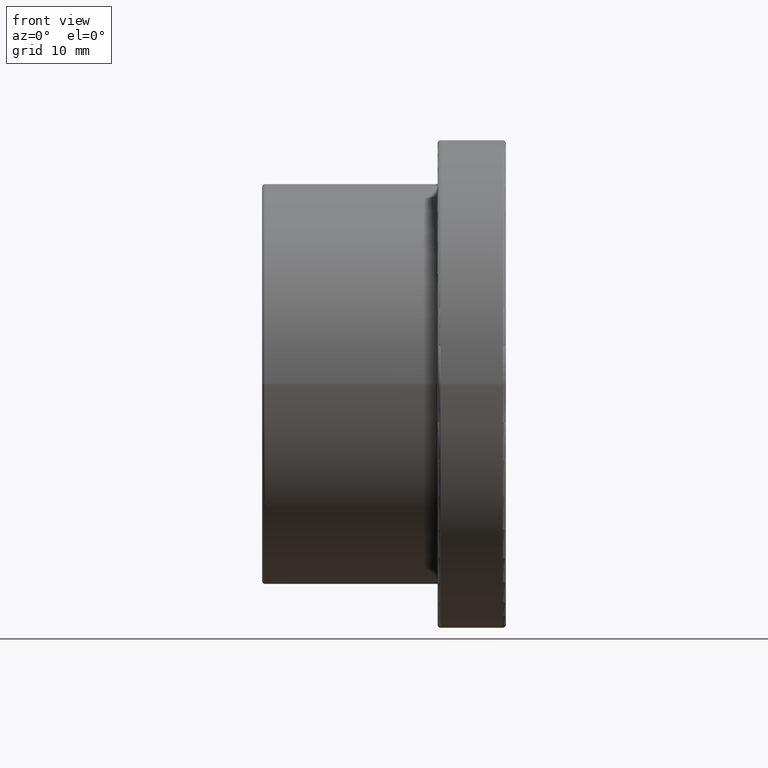
[diagram: clean part render]
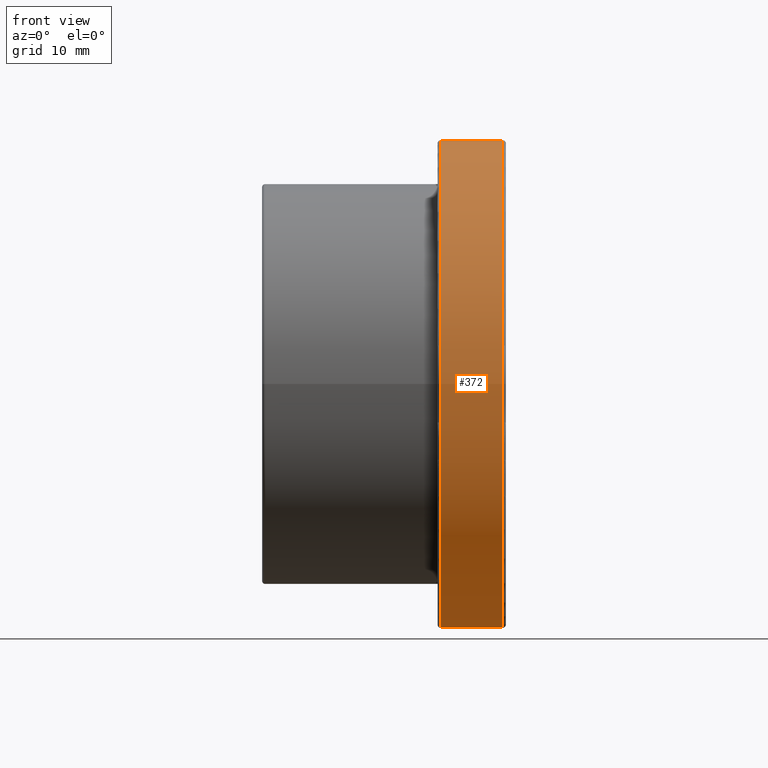
[diagram: same view with one face highlighted and labeled with its STEP entity id]
A machine part, front view. The second image highlights one B-rep face of the part: STEP entity #372.
In plain terms, the highlighted cylindrical surface (bore or boss wall) has radius 25 mm, axis along (-1, 0, 0).
Its self-contained STEP definition (entity closure, byte-faithful):
#22=CYLINDRICAL_SURFACE('',#436,25.);
#60=FACE_BOUND('',#154,.T.);
#93=FACE_OUTER_BOUND('',#153,.T.);
#153=EDGE_LOOP('',(#318));
#154=EDGE_LOOP('',(#319));
#193=CIRCLE('',#435,25.);
#194=CIRCLE('',#437,25.);
#226=VERTEX_POINT('',#664);
#227=VERTEX_POINT('',#667);
#259=EDGE_CURVE('',#226,#226,#193,.T.);
#260=EDGE_CURVE('',#227,#227,#194,.T.);
#318=ORIENTED_EDGE('',*,*,#260,.F.);
#319=ORIENTED_EDGE('',*,*,#259,.F.);
#372=ADVANCED_FACE('',(#93,#60),#22,.T.);
#435=AXIS2_PLACEMENT_3D('',#665,#558,#559);
#436=AXIS2_PLACEMENT_3D('',#666,#560,#561);
#437=AXIS2_PLACEMENT_3D('',#668,#562,#563);
#558=DIRECTION('center_axis',(1.,0.,0.));
#559=DIRECTION('ref_axis',(0.,1.,6.12323399573677E-17));
#560=DIRECTION('center_axis',(-1.,0.,0.));
#561=DIRECTION('ref_axis',(0.,-1.,0.));
#562=DIRECTION('center_axis',(-1.,0.,0.));
#563=DIRECTION('ref_axis',(0.,1.,6.12323399573677E-17));
#664=CARTESIAN_POINT('',(24.68,-25.,-4.59242549680258E-15));
#665=CARTESIAN_POINT('Origin',(24.68,0.,0.));
#666=CARTESIAN_POINT('Origin',(21.5,0.,0.));
#667=CARTESIAN_POINT('',(18.32,-25.,1.53080849893419E-15));
#668=CARTESIAN_POINT('Origin',(18.32,0.,0.));